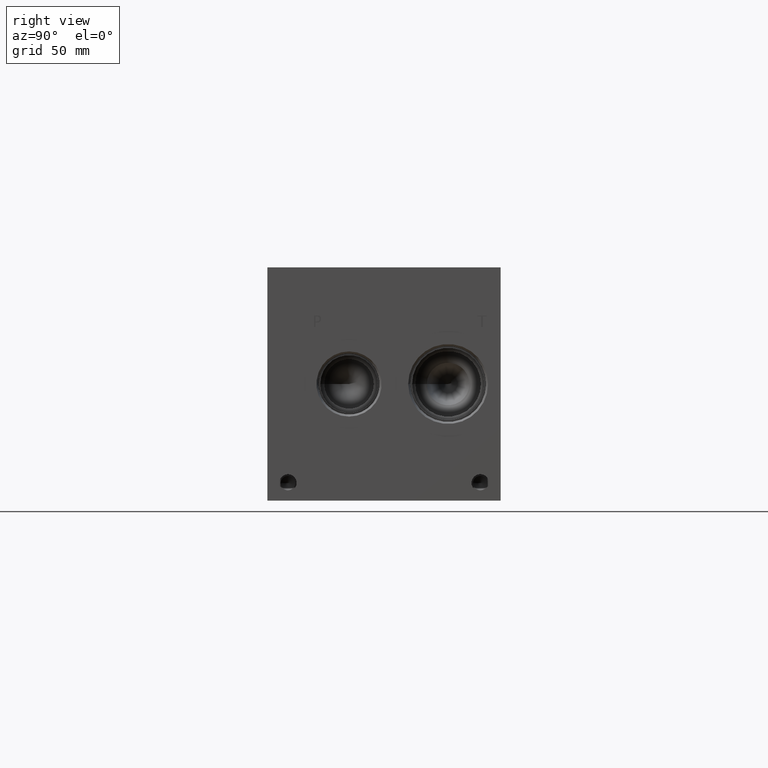
[diagram: clean part render]
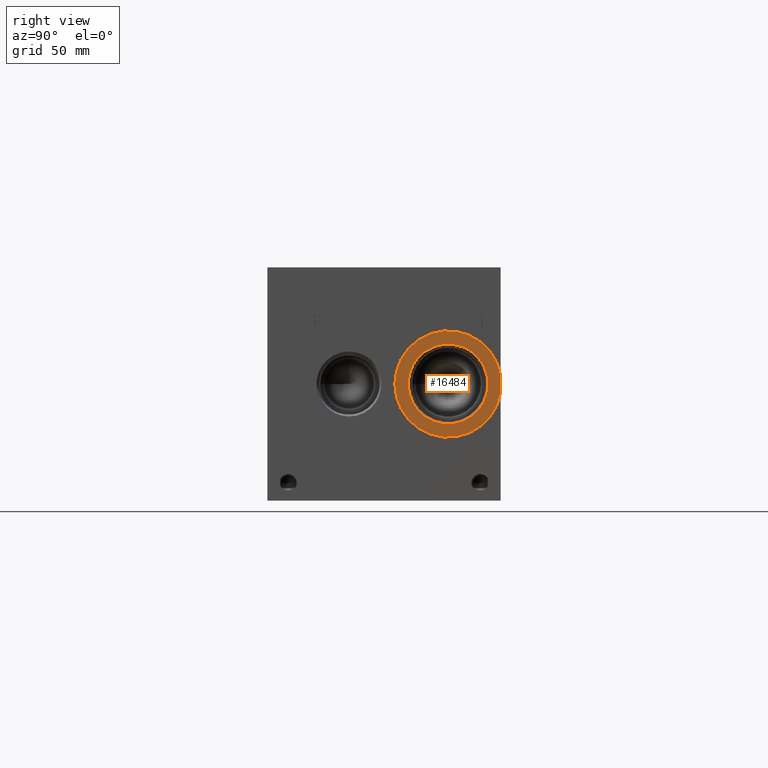
[diagram: same view with one face highlighted and labeled with its STEP entity id]
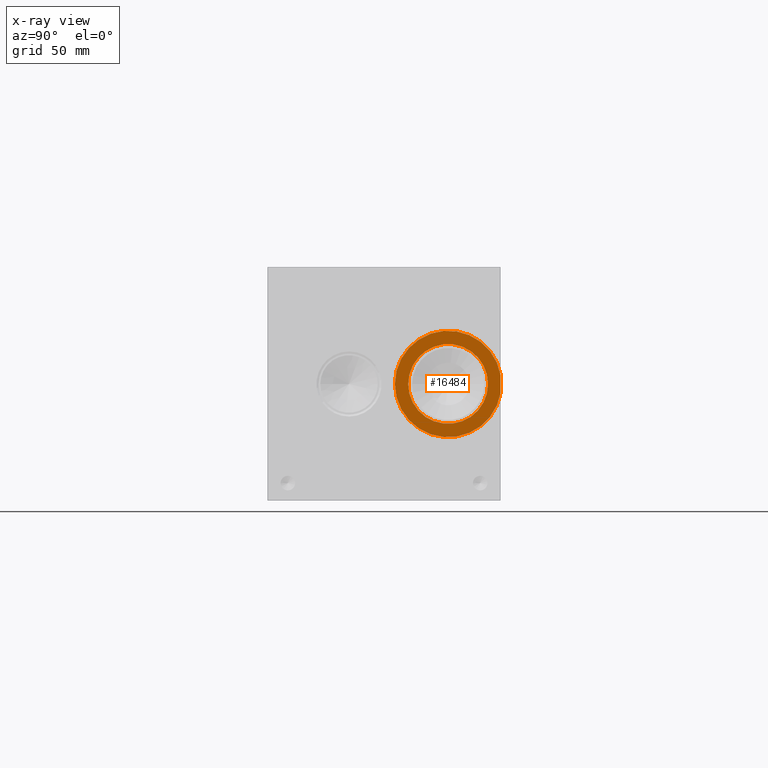
[diagram: x-ray of the same camera — body ghosted, the highlighted face saturated]
A machine part, right view. The second image highlights one B-rep face of the part: STEP entity #16484.
The next image is the same camera in x-ray: the body ghosted, the highlighted face saturated — about 0% of this face is hidden behind the body in this view.
In plain terms, the highlighted planar face has unit normal (1, 0, 0).
Its self-contained STEP definition (entity closure, byte-faithful):
#936=CIRCLE('',#17660,28.9814);
#937=CIRCLE('',#17661,21.7551);
#1448=FACE_BOUND('',#3316,.T.);
#2334=FACE_OUTER_BOUND('',#3315,.T.);
#3315=EDGE_LOOP('',(#14487,#14488));
#3316=EDGE_LOOP('',(#14489));
#4771=LINE('',#28601,#6184);
#6184=VECTOR('',#21380,10.);
#7764=VERTEX_POINT('',#28599);
#7765=VERTEX_POINT('',#28600);
#7766=VERTEX_POINT('',#28603);
#10044=EDGE_CURVE('',#7764,#7765,#4771,.T.);
#10045=EDGE_CURVE('',#7764,#7765,#936,.T.);
#10046=EDGE_CURVE('',#7766,#7766,#937,.T.);
#14487=ORIENTED_EDGE('',*,*,#10044,.F.);
#14488=ORIENTED_EDGE('',*,*,#10045,.T.);
#14489=ORIENTED_EDGE('',*,*,#10046,.F.);
#15087=PLANE('',#17659);
#16484=ADVANCED_FACE('',(#2334,#1448),#15087,.T.);
#17659=AXIS2_PLACEMENT_3D('',#28598,#21378,#21379);
#17660=AXIS2_PLACEMENT_3D('',#28602,#21381,#21382);
#17661=AXIS2_PLACEMENT_3D('',#28604,#21383,#21384);
#21378=DIRECTION('center_axis',(1.,0.,0.));
#21379=DIRECTION('ref_axis',(0.,1.,0.));
#21380=DIRECTION('',(0.,0.,-1.));
#21381=DIRECTION('center_axis',(1.,0.,0.));
#21382=DIRECTION('ref_axis',(0.,1.,0.));
#21383=DIRECTION('center_axis',(1.,0.,0.));
#21384=DIRECTION('ref_axis',(0.,1.,0.));
#28598=CARTESIAN_POINT('Origin',(354.8126,98.425,63.5));
#28599=CARTESIAN_POINT('',(354.8126,127.,68.3364161276714));
#28600=CARTESIAN_POINT('',(354.8126,127.,58.6635838723286));
#28601=CARTESIAN_POINT('',(354.8126,127.,31.75));
#28602=CARTESIAN_POINT('Origin',(354.8126,98.425,63.5));
#28603=CARTESIAN_POINT('',(354.8126,76.6699,63.5));
#28604=CARTESIAN_POINT('Origin',(354.8126,98.425,63.5));